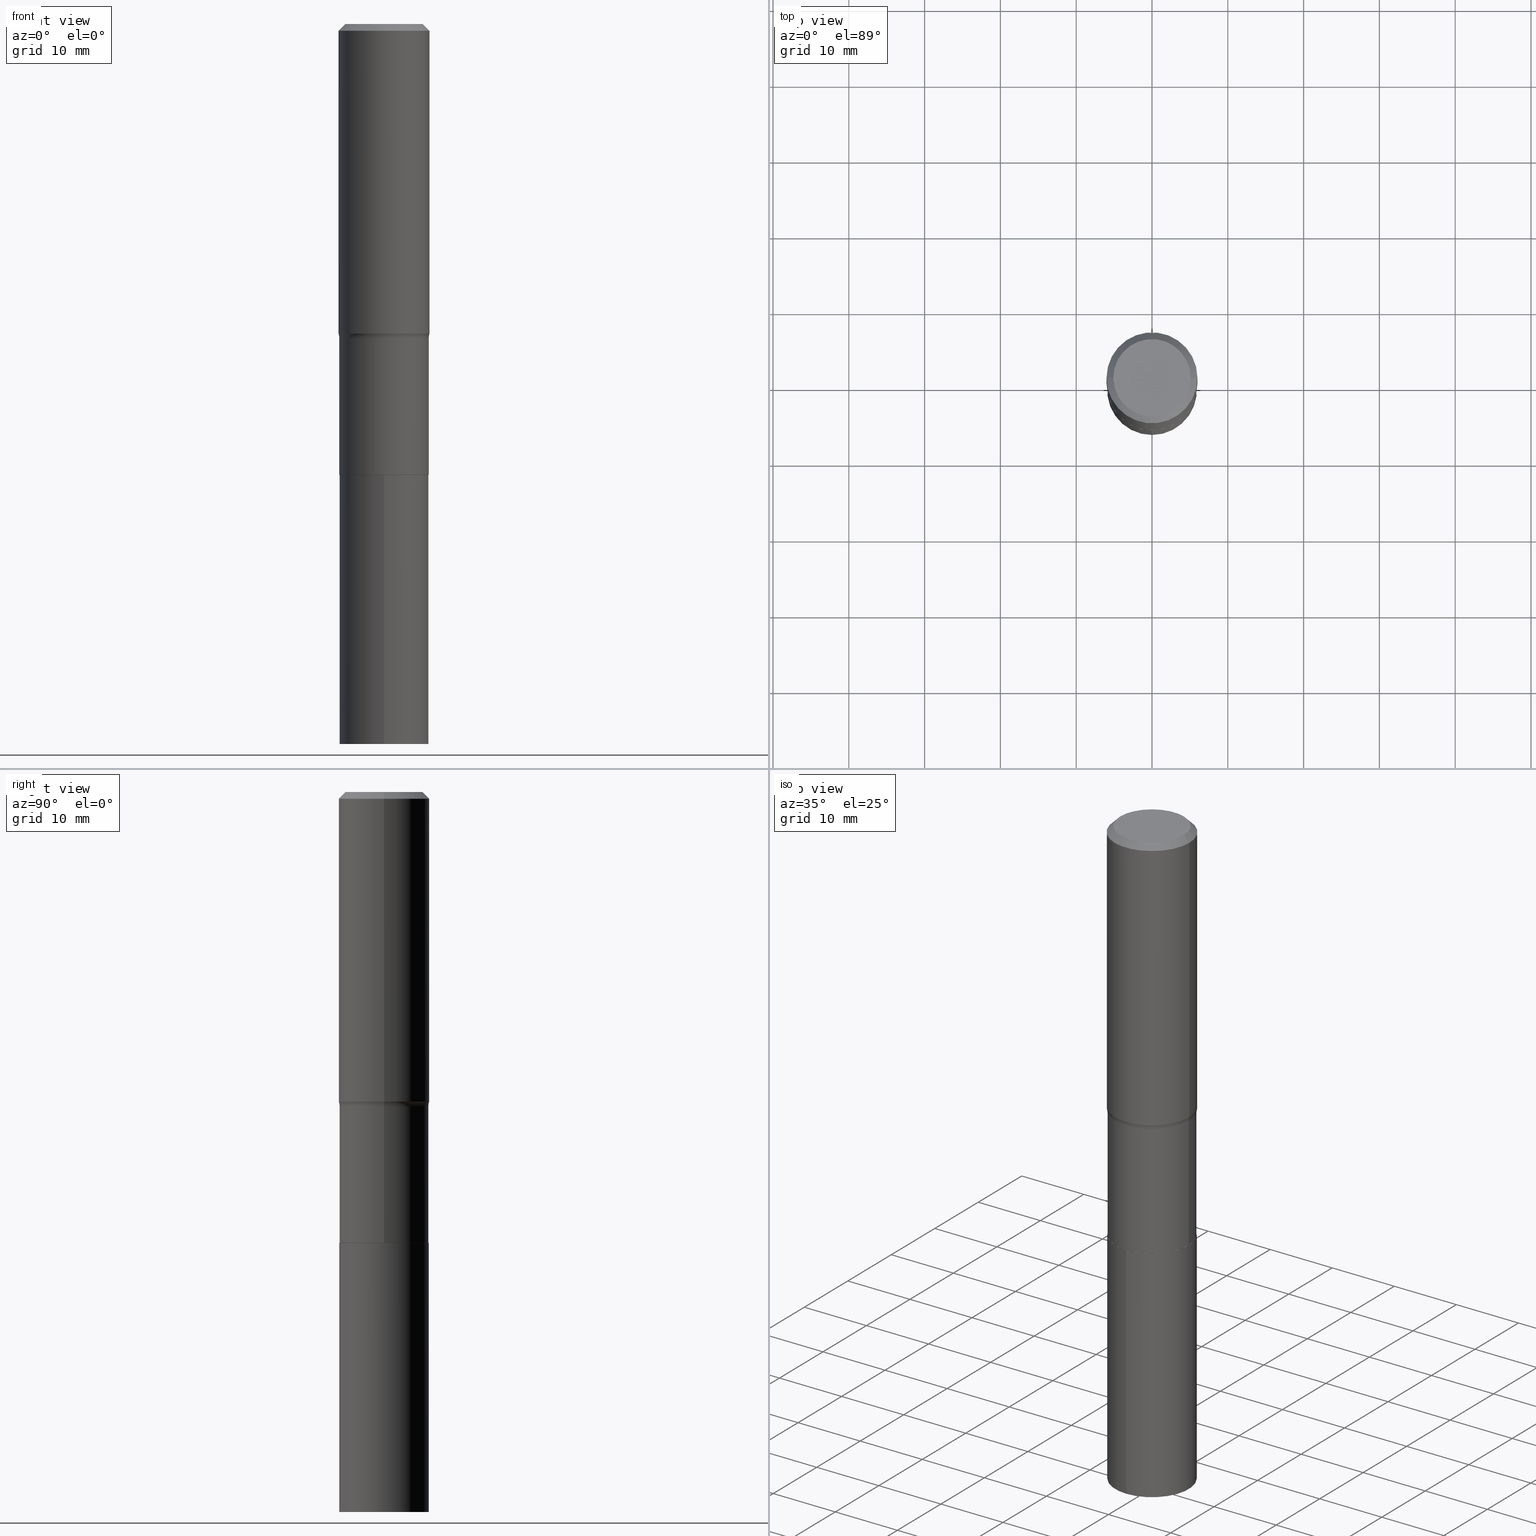
[diagram: canonical four-view strip — front | top / right | iso, engineering-drawing reading convention]
A machine part, canonical four-view strip (front | top / right | iso — engineering-drawing reading convention). The complete STEP part file that produces these views, byte-faithful:
ISO-10303-21;
HEADER;
FILE_DESCRIPTION (( 'STEP AP203' ),
    '1' );
FILE_NAME ('67795.STEP',
    '2024-04-19T16:31:55',
    ( '' ),
    ( '' ),
    'SwSTEP 2.0',
    'SolidWorks 2023',
    '' );
FILE_SCHEMA (( 'CONFIG_CONTROL_DESIGN' ));
ENDSEC;

DATA;
#1 = CALENDAR_DATE ( 2024, 19, 4 ) ;
#2 = VECTOR ( 'NONE', #244, 39.37007874015748143 ) ;
#3 = APPROVAL_PERSON_ORGANIZATION ( #293, #334, #437 ) ;
#4 = ADVANCED_FACE ( 'NONE', ( #218 ), #6, .F. ) ;
#5 = FACE_OUTER_BOUND ( 'NONE', #64, .T. ) ;
#6 = TOROIDAL_SURFACE ( 'NONE', #24, 0.3122999999999999110, 0.07999999999999998779 ) ;
#7 = AXIS2_PLACEMENT_3D ( 'NONE', #360, #136, #324 ) ;
#8 = DIRECTION ( 'NONE',  ( -2.445460196475928027E-29, 3.491493668436766401E-15, 1.000000000000000000 ) ) ;
#9 = CARTESIAN_POINT ( 'NONE',  ( 0.3122999999999999110, -7.880622529902856699E-15, -1.632500000000000062 ) ) ;
#10 = ORIENTED_EDGE ( 'NONE', *, *, #15, .T. ) ;
#11 = DIRECTION ( 'NONE',  ( -2.445468806185136597E-29, 3.491481338843145583E-15, 1.000000000000000000 ) ) ;
#12 = AXIS2_PLACEMENT_3D ( 'NONE', #29, #294, #181 ) ;
#13 =( NAMED_UNIT ( * ) PLANE_ANGLE_UNIT ( ) SI_UNIT ( $, .RADIAN. ) );
#14 = CARTESIAN_POINT ( 'NONE',  ( 5.727777037846827784E-29, -8.177747591838416328E-15, -2.342200000000000060 ) ) ;
#15 = EDGE_CURVE ( 'NONE', #239, #93, #32, .T. ) ;
#16 = ORIENTED_EDGE ( 'NONE', *, *, #302, .T. ) ;
#17 = AXIS2_PLACEMENT_3D ( 'NONE', #439, #11, #333 ) ;
#18 = CARTESIAN_POINT ( 'NONE',  ( 0.2322999999999998955, -7.321985515687955047E-15, -1.632500000000000062 ) ) ;
#19 = EDGE_LOOP ( 'NONE', ( #351, #256, #451, #123 ) ) ;
#20 = DIRECTION ( 'NONE',  ( 0.7071067811865450192, -7.319954787623246579E-15, -0.7071067811865500152 ) ) ;
#21 = ORIENTED_EDGE ( 'NONE', *, *, #446, .F. ) ;
#22 = CARTESIAN_POINT ( 'NONE',  ( 0.2362000000000001043, -1.649375784469496920E-15, 1.151752954443000508E-29 ) ) ;
#23 = VERTEX_POINT ( 'NONE', #140 ) ;
#24 = AXIS2_PLACEMENT_3D ( 'NONE', #321, #110, #259 ) ;
#25 = AXIS2_PLACEMENT_3D ( 'NONE', #124, #53, #414 ) ;
#26 = CARTESIAN_POINT ( 'NONE',  ( -0.2318000000000000060, -6.528060303172393642E-15, -2.342200000000000060 ) ) ;
#27 = VERTEX_POINT ( 'NONE', #426 ) ;
#28 = PERSON_AND_ORGANIZATION ( #226, #69 ) ;
#29 = CARTESIAN_POINT ( 'NONE',  ( 0.000000000000000000, 0.000000000000000000, 0.000000000000000000 ) ) ;
#30 = ADVANCED_FACE ( 'NONE', ( #31 ), #255, .T. ) ;
#31 = FACE_OUTER_BOUND ( 'NONE', #448, .T. ) ;
#32 = CIRCLE ( 'NONE', #298, 0.2007700000000000040 ) ;
#33 = CIRCLE ( 'NONE', #400, 0.2318000000000000060 ) ;
#34 = CC_DESIGN_SECURITY_CLASSIFICATION ( #149, ( #205 ) ) ;
#35 = ORIENTED_EDGE ( 'NONE', *, *, #150, .F. ) ;
#36 = ORIENTED_EDGE ( 'NONE', *, *, #112, .T. ) ;
#37 = DIRECTION ( 'NONE',  ( -6.982962677686265922E-15, -1.000000000000000000, 3.527999991817817286E-15 ) ) ;
#38 = ADVANCED_FACE ( 'NONE', ( #5 ), #358, .T. ) ;
#39 = EDGE_LOOP ( 'NONE', ( #405, #155, #175, #219 ) ) ;
#40 = CIRCLE ( 'NONE', #204, 0.2323000000000000065 ) ;
#41 = AXIS2_PLACEMENT_3D ( 'NONE', #407, #350, #199 ) ;
#42 = DATE_TIME_ROLE ( 'classification_date' ) ;
#43 = DIRECTION ( 'NONE',  ( -0.7071067811866199593, 7.493145998870616062E-15, 0.7071067811864750752 ) ) ;
#44 = CC_DESIGN_PERSON_AND_ORGANIZATION_ASSIGNMENT ( #227, #88, ( #149 ) ) ;
#45 = ORIENTED_EDGE ( 'NONE', *, *, #318, .F. ) ;
#46 = CARTESIAN_POINT ( 'NONE',  ( 8.664295980313998742E-31, -1.237031838352135065E-16, -0.03543000000000024602 ) ) ;
#47 = AXIS2_PLACEMENT_3D ( 'NONE', #85, #151, #115 ) ;
#48 = COORDINATED_UNIVERSAL_TIME_OFFSET ( 5, 0, .BEHIND. ) ;
#49 = EDGE_CURVE ( 'NONE', #384, #308, #435, .T. ) ;
#50 = CARTESIAN_POINT ( 'NONE',  ( -0.2361999999999999933, -1.190397463391202039E-15, -0.03543000000000024602 ) ) ;
#51 = CARTESIAN_POINT ( 'NONE',  ( 8.664295980313998742E-31, -1.237031838352135065E-16, -0.03543000000000024602 ) ) ;
#52 = DIRECTION ( 'NONE',  ( -2.445468806185136597E-29, 3.491481338843145583E-15, 1.000000000000000000 ) ) ;
#53 = DIRECTION ( 'NONE',  ( -2.445468806185136597E-29, 3.491481338843145583E-15, 1.000000000000000000 ) ) ;
#54 =( LENGTH_UNIT ( ) NAMED_UNIT ( * ) SI_UNIT ( $, .METRE. ) );
#55 = ORIENTED_EDGE ( 'NONE', *, *, #367, .T. ) ;
#56 = CIRCLE ( 'NONE', #372, 0.2323000000000000065 ) ;
#57 = VECTOR ( 'NONE', #281, 39.37007874015748143 ) ;
#58 = CARTESIAN_POINT ( 'NONE',  ( 0.2323000000000000065, -9.798144081195515105E-15, -2.341700000000000337 ) ) ;
#59 = DIRECTION ( 'NONE',  ( -2.445468806185136597E-29, 3.491481338843145583E-15, 1.000000000000000000 ) ) ;
#60 = EDGE_LOOP ( 'NONE', ( #462, #120, #347, #90 ) ) ;
#61 = DESIGN_CONTEXT ( 'detailed design', #169, 'design' ) ;
#62 = CARTESIAN_POINT ( 'NONE',  ( -1.622142230026462497E-15, -0.2323000000000081666, -2.342199999999999616 ) ) ;
#63 = EDGE_CURVE ( 'NONE', #168, #126, #276, .T. ) ;
#64 = EDGE_LOOP ( 'NONE', ( #412, #421, #258, #336 ) ) ;
#65 = DIRECTION ( 'NONE',  ( -0.7071067811865450192, 2.468850131082230634E-15, -0.7071067811865500152 ) ) ;
#66 = DIRECTION ( 'NONE',  ( -2.445468806185136877E-29, 3.491481338843145188E-15, 1.000000000000000000 ) ) ;
#67 = ORIENTED_EDGE ( 'NONE', *, *, #138, .F. ) ;
#68 = CIRCLE ( 'NONE', #161, 0.2322999999999998955 ) ;
#69 = ORGANIZATION ( 'UNSPECIFIED', 'UNSPECIFIED', '' ) ;
#70 = CARTESIAN_POINT ( 'NONE',  ( 3.931889135345447533E-29, -5.613695626677905258E-15, -1.607826329823067724 ) ) ;
#71 = ADVANCED_FACE ( 'NONE', ( #202 ), #317, .T. ) ;
#72 = PERSON_AND_ORGANIZATION ( #226, #69 ) ;
#73 = APPLICATION_CONTEXT ( 'configuration controlled 3d designs of mechanical parts and assemblies' ) ;
#74 = APPROVAL_DATE_TIME ( #391, #116 ) ;
#75 = AXIS2_PLACEMENT_3D ( 'NONE', #14, #417, #246 ) ;
#76 = DIRECTION ( 'NONE',  ( -2.445468806185136597E-29, 3.491481338843145583E-15, 1.000000000000000000 ) ) ;
#77 = MECHANICAL_CONTEXT ( 'NONE', #73, 'mechanical' ) ;
#78 = EDGE_CURVE ( 'NONE', #206, #387, #458, .T. ) ;
#79 = APPROVAL_DATE_TIME ( #84, #171 ) ;
#80 = DIRECTION ( 'NONE',  ( -2.445460196475928027E-29, 3.491493668436766401E-15, 1.000000000000000000 ) ) ;
#81 = PERSON_AND_ORGANIZATION_ROLE ( 'creator' ) ;
#82 = PERSON_AND_ORGANIZATION_ROLE ( 'design_supplier' ) ;
#83 = VECTOR ( 'NONE', #174, 39.37007874015748143 ) ;
#84 = DATE_AND_TIME ( #152, #119 ) ;
#85 = CARTESIAN_POINT ( 'NONE',  ( 3.992227826097236189E-29, -5.699843285661435555E-15, -1.632500000000000062 ) ) ;
#86 = CIRCLE ( 'NONE', #338, 0.2361999999999999933 ) ;
#87 = EDGE_CURVE ( 'NONE', #455, #260, #141, .T. ) ;
#88 = PERSON_AND_ORGANIZATION_ROLE ( 'classification_officer' ) ;
#89 = DATE_AND_TIME ( #404, #442 ) ;
#90 = ORIENTED_EDGE ( 'NONE', *, *, #386, .F. ) ;
#91 = LINE ( 'NONE', #225, #113 ) ;
#92 = CIRCLE ( 'NONE', #25, 0.2318000000000000060 ) ;
#93 = VERTEX_POINT ( 'NONE', #237 ) ;
#94 = DIRECTION ( 'NONE',  ( -2.438088387897960049E-29, 3.491481338843145188E-15, 1.000000000000000000 ) ) ;
#95 = CARTESIAN_POINT ( 'NONE',  ( 9.146530392520179106E-29, -1.305885574031301935E-14, -3.740200000000001079 ) ) ;
#96 =( NAMED_UNIT ( * ) SI_UNIT ( $, .STERADIAN. ) SOLID_ANGLE_UNIT ( ) );
#97 = ORIENTED_EDGE ( 'NONE', *, *, #251, .F. ) ;
#98 = AXIS2_PLACEMENT_3D ( 'NONE', #466, #139, #286 ) ;
#99 = CIRCLE ( 'NONE', #401, 0.07999999999999996003 ) ;
#100 = ADVANCED_FACE ( 'NONE', ( #165 ), #129, .T. ) ;
#101 = DIRECTION ( 'NONE',  ( -2.445468806185136597E-29, 3.491481338843145583E-15, 1.000000000000000000 ) ) ;
#102 = EDGE_LOOP ( 'NONE', ( #35, #223 ) ) ;
#103 = CARTESIAN_POINT ( 'NONE',  ( 0.2007700000000000040, -1.560767496960719869E-15, 4.096137381458473721E-18 ) ) ;
#104 = DIRECTION ( 'NONE',  ( 1.000000000000000000, -6.982962677686266711E-15, 4.876176775795935793E-29 ) ) ;
#105 = ORIENTED_EDGE ( 'NONE', *, *, #342, .F. ) ;
#106 = FACE_OUTER_BOUND ( 'NONE', #19, .T. ) ;
#107 = EDGE_CURVE ( 'NONE', #172, #222, #92, .T. ) ;
#108 = ORIENTED_EDGE ( 'NONE', *, *, #378, .T. ) ;
#109 = DIRECTION ( 'NONE',  ( 0.000000000000000000, 0.000000000000000000, 1.000000000000000000 ) ) ;
#110 = DIRECTION ( 'NONE',  ( -2.445468806185136597E-29, 3.491481338843145583E-15, 1.000000000000000000 ) ) ;
#111 = ORIENTED_EDGE ( 'NONE', *, *, #465, .T. ) ;
#112 = EDGE_CURVE ( 'NONE', #222, #172, #33, .T. ) ;
#113 = VECTOR ( 'NONE', #8, 39.37007874015748143 ) ;
#114 = AXIS2_PLACEMENT_3D ( 'NONE', #159, #450, #208 ) ;
#115 = DIRECTION ( 'NONE',  ( 1.000000000000000000, -6.982962677686265133E-15, 0.000000000000000000 ) ) ;
#116 = APPROVAL ( #327, 'UNSPECIFIED' ) ;
#117 = CLOSED_SHELL ( 'NONE', ( #264, #269, #30, #425 ) ) ;
#118 = CONICAL_SURFACE ( 'NONE', #291, 0.2318000000000000060, 0.7853981633975507526 ) ;
#119 = LOCAL_TIME ( 12, 31, 55.00000000000000000, #192 ) ;
#120 = ORIENTED_EDGE ( 'NONE', *, *, #138, .T. ) ;
#121 = DATE_AND_TIME ( #337, #459 ) ;
#122 = LINE ( 'NONE', #303, #292 ) ;
#123 = ORIENTED_EDGE ( 'NONE', *, *, #302, .F. ) ;
#124 = CARTESIAN_POINT ( 'NONE',  ( 5.727777037846827784E-29, -8.177747591838416328E-15, -2.342200000000000060 ) ) ;
#125 = DIRECTION ( 'NONE',  ( 0.7071067811866199593, -2.468850131083015945E-15, 0.7071067811864750752 ) ) ;
#126 = VERTEX_POINT ( 'NONE', #18 ) ;
#127 = CC_DESIGN_PERSON_AND_ORGANIZATION_ASSIGNMENT ( #399, #82, ( #205 ) ) ;
#128 = CARTESIAN_POINT ( 'NONE',  ( -0.2361999999999999933, 1.525672600634282550E-15, -0.03543000000000024602 ) ) ;
#129 = CYLINDRICAL_SURFACE ( 'NONE', #379, 0.2322999999999999510 ) ;
#130 = CARTESIAN_POINT ( 'NONE',  ( -0.2362000000000002153, -3.935393684812547286E-15, -1.607826329823067724 ) ) ;
#131 = ORIENTED_EDGE ( 'NONE', *, *, #189, .T. ) ;
#132 = AXIS2_PLACEMENT_3D ( 'NONE', #147, #326, #182 ) ;
#133 = PRODUCT_RELATED_PRODUCT_CATEGORY ( 'detail', '', ( #230 ) ) ;
#134 = PLANE ( 'NONE',  #345 ) ;
#135 = DIRECTION ( 'NONE',  ( 1.000000000000000000, -6.982962677686266711E-15, 4.876176775795935232E-29 ) ) ;
#136 = DIRECTION ( 'NONE',  ( 2.438088387897960049E-29, -3.491481338843145188E-15, -1.000000000000000000 ) ) ;
#137 = EDGE_LOOP ( 'NONE', ( #305, #271, #111, #21 ) ) ;
#138 = EDGE_CURVE ( 'NONE', #387, #308, #190, .T. ) ;
#139 = DIRECTION ( 'NONE',  ( -2.445468806185136597E-29, 3.491481338843145583E-15, 1.000000000000000000 ) ) ;
#140 = CARTESIAN_POINT ( 'NONE',  ( 1.650590775170804286E-15, 0.2322999999999918463, -2.342200000000000948 ) ) ;
#141 = CIRCLE ( 'NONE', #148, 0.2361999999999999933 ) ;
#142 = ORIENTED_EDGE ( 'NONE', *, *, #15, .F. ) ;
#143 = DATE_TIME_ROLE ( 'creation_date' ) ;
#144 = EDGE_LOOP ( 'NONE', ( #249, #394, #178, #283 ) ) ;
#145 = CARTESIAN_POINT ( 'NONE',  ( 5.727777037846827784E-29, -8.177747591838416328E-15, -2.342200000000000060 ) ) ;
#146 = CC_DESIGN_DATE_AND_TIME_ASSIGNMENT ( #89, #42, ( #149 ) ) ;
#147 = CARTESIAN_POINT ( 'NONE',  ( 8.664295980313998742E-31, -1.237031838352135065E-16, -0.03543000000000024602 ) ) ;
#148 = AXIS2_PLACEMENT_3D ( 'NONE', #357, #160, #254 ) ;
#149 = SECURITY_CLASSIFICATION ( '', '', #402 ) ;
#150 = EDGE_CURVE ( 'NONE', #275, #27, #232, .T. ) ;
#151 = DIRECTION ( 'NONE',  ( -2.445468806185136597E-29, 3.491481338843145583E-15, 1.000000000000000000 ) ) ;
#152 = CALENDAR_DATE ( 2024, 19, 4 ) ;
#153 = DIRECTION ( 'NONE',  ( -6.982962677686266711E-15, -1.000000000000000000, 3.491481338843145583E-15 ) ) ;
#154 = APPROVAL_DATE_TIME ( #121, #334 ) ;
#155 = ORIENTED_EDGE ( 'NONE', *, *, #186, .F. ) ;
#156 = DIRECTION ( 'NONE',  ( -2.445460196475928027E-29, 3.491493668436766401E-15, 1.000000000000000000 ) ) ;
#157 = APPLICATION_PROTOCOL_DEFINITION ( 'international standard', 'config_control_design', 1994, #73 ) ;
#158 = ADVANCED_FACE ( 'NONE', ( #213 ), #118, .T. ) ;
#159 = CARTESIAN_POINT ( 'NONE',  ( 0.000000000000000000, 0.000000000000000000, 0.000000000000000000 ) ) ;
#160 = DIRECTION ( 'NONE',  ( -2.445468806185136597E-29, 3.491481338843145583E-15, 1.000000000000000000 ) ) ;
#161 = AXIS2_PLACEMENT_3D ( 'NONE', #170, #310, #247 ) ;
#162 = AXIS2_PLACEMENT_3D ( 'NONE', #468, #187, #325 ) ;
#163 = LINE ( 'NONE', #415, #2 ) ;
#164 = ORIENTED_EDGE ( 'NONE', *, *, #112, .F. ) ;
#165 = FACE_OUTER_BOUND ( 'NONE', #144, .T. ) ;
#166 = CC_DESIGN_PERSON_AND_ORGANIZATION_ASSIGNMENT ( #263, #81, ( #205 ) ) ;
#167 = PLANE ( 'NONE',  #368 ) ;
#168 = VERTEX_POINT ( 'NONE', #58 ) ;
#169 = APPLICATION_CONTEXT ( 'configuration controlled 3d designs of mechanical parts and assemblies' ) ;
#170 = CARTESIAN_POINT ( 'NONE',  ( 3.992227826097236189E-29, -5.699843285661435555E-15, -1.632500000000000062 ) ) ;
#171 = APPROVAL ( #370, 'UNSPECIFIED' ) ;
#172 = VERTEX_POINT ( 'NONE', #26 ) ;
#173 = DIRECTION ( 'NONE',  ( -2.445460196475927747E-29, 3.491493668436766401E-15, 1.000000000000000000 ) ) ;
#174 = DIRECTION ( 'NONE',  ( -2.445468806185136877E-29, 3.491481338843145188E-15, 1.000000000000000000 ) ) ;
#175 = ORIENTED_EDGE ( 'NONE', *, *, #251, .T. ) ;
#176 = CONICAL_SURFACE ( 'NONE', #267, 0.2361999999999999933, 0.7853981633974447263 ) ;
#177 = CARTESIAN_POINT ( 'NONE',  ( 0.2322999999999999510, -1.622142230026519492E-15, 1.132735865017395539E-29 ) ) ;
#178 = ORIENTED_EDGE ( 'NONE', *, *, #63, .T. ) ;
#179 = FACE_OUTER_BOUND ( 'NONE', #381, .T. ) ;
#180 = APPLICATION_PROTOCOL_DEFINITION ( 'international standard', 'config_control_design', 1994, #169 ) ;
#181 = DIRECTION ( 'NONE',  ( 1.000000000000000000, -6.982962677686266711E-15, 4.876176775795935232E-29 ) ) ;
#182 = DIRECTION ( 'NONE',  ( -1.000000000000000000, 6.982962677686266711E-15, 0.000000000000000000 ) ) ;
#183 = CIRCLE ( 'NONE', #98, 0.2007700000000000040 ) ;
#184 = PERSON_AND_ORGANIZATION_ROLE ( 'creator' ) ;
#185 = CC_DESIGN_APPROVAL ( #171, ( #149 ) ) ;
#186 = EDGE_CURVE ( 'NONE', #93, #239, #183, .T. ) ;
#187 = DIRECTION ( 'NONE',  ( -2.445460196475928027E-29, 3.491493668436766401E-15, 1.000000000000000000 ) ) ;
#188 = COORDINATED_UNIVERSAL_TIME_OFFSET ( 5, 0, .BEHIND. ) ;
#189 = EDGE_CURVE ( 'NONE', #239, #455, #207, .T. ) ;
#190 = CIRCLE ( 'NONE', #408, 0.07999999999999996003 ) ;
#191 = CARTESIAN_POINT ( 'NONE',  ( 5.727777037846827784E-29, -8.177747591838416328E-15, -2.342200000000000060 ) ) ;
#192 = COORDINATED_UNIVERSAL_TIME_OFFSET ( 5, 0, .BEHIND. ) ;
#193 = DIRECTION ( 'NONE',  ( -2.445468806185136597E-29, 3.491481338843145583E-15, 1.000000000000000000 ) ) ;
#194 = ORIENTED_EDGE ( 'NONE', *, *, #386, .T. ) ;
#195 = DIRECTION ( 'NONE',  ( 1.000000000000000000, -6.982962677686262766E-15, 0.000000000000000000 ) ) ;
#196 = EDGE_CURVE ( 'NONE', #308, #126, #68, .T. ) ;
#197 = PERSON_AND_ORGANIZATION ( #226, #69 ) ;
#198 = CARTESIAN_POINT ( 'NONE',  ( -3.139212806744522450E-29, -3.065273926273713566E-14, -3.740200000000000635 ) ) ;
#199 = DIRECTION ( 'NONE',  ( 1.000000000000000000, -6.982962677686265922E-15, 0.000000000000000000 ) ) ;
#200 = PRODUCT_DEFINITION ( 'UNKNOWN', '', #205, #61 ) ;
#201 = ADVANCED_BREP_SHAPE_REPRESENTATION ( '67795', ( #282, #440, #431 ), #301 ) ;
#202 = FACE_OUTER_BOUND ( 'NONE', #315, .T. ) ;
#203 =( CONVERSION_BASED_UNIT ( 'INCH', #277 ) LENGTH_UNIT ( ) NAMED_UNIT ( #422 ) );
#204 = AXIS2_PLACEMENT_3D ( 'NONE', #145, #156, #339 ) ;
#205 = PRODUCT_DEFINITION_FORMATION_WITH_SPECIFIED_SOURCE ( 'ANY', '', #230, .NOT_KNOWN. ) ;
#206 = VERTEX_POINT ( 'NONE', #383 ) ;
#207 = LINE ( 'NONE', #348, #429 ) ;
#208 = DIRECTION ( 'NONE',  ( 1.000000000000000000, -6.982962677686266711E-15, 4.876176775795935793E-29 ) ) ;
#209 = VERTEX_POINT ( 'NONE', #62 ) ;
#210 = LINE ( 'NONE', #22, #83 ) ;
#211 = EDGE_LOOP ( 'NONE', ( #36, #377, #424, #299 ) ) ;
#212 = CARTESIAN_POINT ( 'NONE',  ( 5.727777037846827784E-29, -8.177747591838416328E-15, -2.342200000000000060 ) ) ;
#213 = FACE_OUTER_BOUND ( 'NONE', #137, .T. ) ;
#214 = ORIENTED_EDGE ( 'NONE', *, *, #78, .F. ) ;
#215 = EDGE_CURVE ( 'NONE', #206, #455, #210, .T. ) ;
#216 = CIRCLE ( 'NONE', #41, 0.2323000000000000065 ) ;
#217 = PERSON_AND_ORGANIZATION ( #226, #69 ) ;
#218 = FACE_OUTER_BOUND ( 'NONE', #364, .T. ) ;
#219 = ORIENTED_EDGE ( 'NONE', *, *, #438, .T. ) ;
#220 = EDGE_CURVE ( 'NONE', #27, #275, #436, .T. ) ;
#221 = AXIS2_PLACEMENT_3D ( 'NONE', #95, #419, #449 ) ;
#222 = VERTEX_POINT ( 'NONE', #403 ) ;
#223 = ORIENTED_EDGE ( 'NONE', *, *, #220, .F. ) ;
#224 = EDGE_CURVE ( 'NONE', #168, #384, #366, .T. ) ;
#225 = CARTESIAN_POINT ( 'NONE',  ( 1.650590775170769773E-15, 0.2322999999999918463, -2.342200000000000948 ) ) ;
#226 = PERSON ( 'UNSPECIFIED', 'UNSPECIFIED', 'UNSPECIFIED', ('UNSPECIFIED'), ('UNSPECIFIED'), ('UNSPECIFIED') ) ;
#227 = PERSON_AND_ORGANIZATION ( #226, #69 ) ;
#228 = DIRECTION ( 'NONE',  ( -6.982962677686265922E-15, -1.000000000000000000, 2.351999994545211393E-15 ) ) ;
#229 = CARTESIAN_POINT ( 'NONE',  ( -0.2318000000000000060, -6.530709530346504843E-15, -2.342200000000000060 ) ) ;
#230 = PRODUCT ( '67795', '67795', '', ( #77 ) ) ;
#231 = ORIENTED_EDGE ( 'NONE', *, *, #87, .T. ) ;
#232 = CIRCLE ( 'NONE', #221, 0.2323000000000000065 ) ;
#233 = CARTESIAN_POINT ( 'NONE',  ( 0.000000000000000000, 0.000000000000000000, 0.000000000000000000 ) ) ;
#234 = DIRECTION ( 'NONE',  ( 6.982962677686265922E-15, 1.000000000000000000, -3.491493668436766401E-15 ) ) ;
#235 = CARTESIAN_POINT ( 'NONE',  ( 3.992227826097236189E-29, -5.699843285661435555E-15, -1.632500000000000062 ) ) ;
#236 = ADVANCED_FACE ( 'NONE', ( #385 ), #134, .F. ) ;
#237 = CARTESIAN_POINT ( 'NONE',  ( -0.2007700000000000040, 1.463821008716676943E-15, 4.096137381438094301E-18 ) ) ;
#238 = CARTESIAN_POINT ( 'NONE',  ( 5.727777037846827784E-29, -8.177747591838416328E-15, -2.342200000000000060 ) ) ;
#239 = VERTEX_POINT ( 'NONE', #103 ) ;
#240 = CARTESIAN_POINT ( 'NONE',  ( 5.727777037846827784E-29, -8.177747591838416328E-15, -2.342200000000000060 ) ) ;
#241 = CLOSED_SHELL ( 'NONE', ( #349, #289, #406, #297, #38, #100, #4, #71, #329, #312, #236, #158 ) ) ;
#242 = TOROIDAL_SURFACE ( 'NONE', #365, 0.3122999999999999110, 0.07999999999999998779 ) ;
#243 = LOCAL_TIME ( 12, 31, 55.00000000000000000, #320 ) ;
#244 = DIRECTION ( 'NONE',  ( -2.445460196475928027E-29, 3.491493668436766401E-15, 1.000000000000000000 ) ) ;
#245 = ORIENTED_EDGE ( 'NONE', *, *, #215, .F. ) ;
#246 = DIRECTION ( 'NONE',  ( -6.982962677686265922E-15, -1.000000000000000000, 3.527999991817817286E-15 ) ) ;
#247 = DIRECTION ( 'NONE',  ( 1.000000000000000000, -6.982962677686265133E-15, 0.000000000000000000 ) ) ;
#248 = ORIENTED_EDGE ( 'NONE', *, *, #296, .T. ) ;
#249 = ORIENTED_EDGE ( 'NONE', *, *, #49, .F. ) ;
#250 = CARTESIAN_POINT ( 'NONE',  ( 5.727777037846827784E-29, -8.177747591838416328E-15, -2.342200000000000060 ) ) ;
#251 = EDGE_CURVE ( 'NONE', #93, #260, #316, .T. ) ;
#252 = ORIENTED_EDGE ( 'NONE', *, *, #434, .T. ) ;
#253 = DIRECTION ( 'NONE',  ( -6.982962677686265922E-15, -1.000000000000000000, 3.491493668436766401E-15 ) ) ;
#254 = DIRECTION ( 'NONE',  ( 1.000000000000000000, -6.982962677686266711E-15, 0.000000000000000000 ) ) ;
#255 = CYLINDRICAL_SURFACE ( 'NONE', #162, 0.2323000000000000065 ) ;
#256 = ORIENTED_EDGE ( 'NONE', *, *, #318, .T. ) ;
#257 = CALENDAR_DATE ( 2024, 19, 4 ) ;
#258 = ORIENTED_EDGE ( 'NONE', *, *, #367, .F. ) ;
#259 = DIRECTION ( 'NONE',  ( 1.000000000000000000, -6.982962677686265922E-15, 4.883557194083112901E-29 ) ) ;
#260 = VERTEX_POINT ( 'NONE', #50 ) ;
#261 = APPROVAL_STATUS ( 'not_yet_approved' ) ;
#262 = AXIS2_PLACEMENT_3D ( 'NONE', #309, #273, #341 ) ;
#263 = PERSON_AND_ORGANIZATION ( #226, #69 ) ;
#264 = ADVANCED_FACE ( 'NONE', ( #106 ), #456, .T. ) ;
#265 = LINE ( 'NONE', #229, #274 ) ;
#266 = ORIENTED_EDGE ( 'NONE', *, *, #215, .T. ) ;
#267 = AXIS2_PLACEMENT_3D ( 'NONE', #46, #328, #272 ) ;
#268 = DIRECTION ( 'NONE',  ( 1.000000000000000000, -6.982962677686266711E-15, 0.000000000000000000 ) ) ;
#269 = ADVANCED_FACE ( 'NONE', ( #382 ), #463, .F. ) ;
#270 = COORDINATED_UNIVERSAL_TIME_OFFSET ( 5, 0, .BEHIND. ) ;
#271 = ORIENTED_EDGE ( 'NONE', *, *, #107, .T. ) ;
#272 = DIRECTION ( 'NONE',  ( -1.000000000000000000, 6.982962677686266711E-15, 0.000000000000000000 ) ) ;
#273 = DIRECTION ( 'NONE',  ( -2.445468806185136597E-29, 3.491481338843145583E-15, 1.000000000000000000 ) ) ;
#274 = VECTOR ( 'NONE', #43, 39.37007874015748143 ) ;
#275 = VERTEX_POINT ( 'NONE', #362 ) ;
#276 = LINE ( 'NONE', #177, #300 ) ;
#277 = LENGTH_MEASURE_WITH_UNIT ( LENGTH_MEASURE( 0.02539999999999999897 ), #54 );
#278 = DIRECTION ( 'NONE',  ( 1.000000000000000000, -6.982962677686265922E-15, 4.883557194083112901E-29 ) ) ;
#279 = EDGE_LOOP ( 'NONE', ( #290, #10 ) ) ;
#280 = DIRECTION ( 'NONE',  ( 7.105427357601001859E-15, 1.000000000000000000, -3.491481338843145583E-15 ) ) ;
#281 = DIRECTION ( 'NONE',  ( -2.445468806185136877E-29, 3.491481338843145188E-15, 1.000000000000000000 ) ) ;
#282 = MANIFOLD_SOLID_BREP ( 'Body-Move/Copy2[1]', #117 ) ;
#283 = ORIENTED_EDGE ( 'NONE', *, *, #196, .F. ) ;
#284 = DIRECTION ( 'NONE',  ( -2.445468806185136597E-29, 3.491481338843145583E-15, 1.000000000000000000 ) ) ;
#285 = EDGE_LOOP ( 'NONE', ( #363, #252, #288, #245 ) ) ;
#286 = DIRECTION ( 'NONE',  ( 1.000000000000000000, -6.982962677686266711E-15, 4.876140833081945105E-29 ) ) ;
#287 = FACE_OUTER_BOUND ( 'NONE', #279, .T. ) ;
#288 = ORIENTED_EDGE ( 'NONE', *, *, #87, .F. ) ;
#289 = ADVANCED_FACE ( 'NONE', ( #179 ), #418, .T. ) ;
#290 = ORIENTED_EDGE ( 'NONE', *, *, #186, .T. ) ;
#291 = AXIS2_PLACEMENT_3D ( 'NONE', #240, #284, #380 ) ;
#292 = VECTOR ( 'NONE', #125, 39.37007874015748143 ) ;
#293 = PERSON_AND_ORGANIZATION ( #226, #69 ) ;
#294 = DIRECTION ( 'NONE',  ( -2.445468806185136597E-29, 3.491481338843145583E-15, 1.000000000000000000 ) ) ;
#295 = VECTOR ( 'NONE', #432, 39.37007874015748143 ) ;
#296 = EDGE_CURVE ( 'NONE', #209, #23, #40, .T. ) ;
#297 = ADVANCED_FACE ( 'NONE', ( #374 ), #242, .F. ) ;
#298 = AXIS2_PLACEMENT_3D ( 'NONE', #467, #76, #392 ) ;
#299 = ORIENTED_EDGE ( 'NONE', *, *, #465, .F. ) ;
#300 = VECTOR ( 'NONE', #66, 39.37007874015748143 ) ;
#301 =( GEOMETRIC_REPRESENTATION_CONTEXT ( 3 ) GLOBAL_UNCERTAINTY_ASSIGNED_CONTEXT ( ( #457 ) ) GLOBAL_UNIT_ASSIGNED_CONTEXT ( ( #203, #13, #96 ) ) REPRESENTATION_CONTEXT ( 'NONE', 'WORKASPACE' ) );
#302 = EDGE_CURVE ( 'NONE', #275, #209, #163, .T. ) ;
#303 = CARTESIAN_POINT ( 'NONE',  ( 0.2318000000000000060, -9.796398340526092813E-15, -2.342200000000000060 ) ) ;
#304 = AXIS2_PLACEMENT_3D ( 'NONE', #70, #354, #411 ) ;
#305 = ORIENTED_EDGE ( 'NONE', *, *, #373, .F. ) ;
#306 = CARTESIAN_POINT ( 'NONE',  ( 0.000000000000000000, 0.000000000000000000, 0.000000000000000000 ) ) ;
#307 = DIRECTION ( 'NONE',  ( 1.000000000000000000, -6.982962677686266711E-15, 0.000000000000000000 ) ) ;
#308 = VERTEX_POINT ( 'NONE', #461 ) ;
#309 = CARTESIAN_POINT ( 'NONE',  ( 5.726554303443734982E-29, -8.176001851168995614E-15, -2.341700000000000337 ) ) ;
#310 = DIRECTION ( 'NONE',  ( -2.445468806185136597E-29, 3.491481338843145583E-15, 1.000000000000000000 ) ) ;
#311 = ORIENTED_EDGE ( 'NONE', *, *, #342, .T. ) ;
#312 = ADVANCED_FACE ( 'NONE', ( #287 ), #433, .F. ) ;
#313 = CARTESIAN_POINT ( 'NONE',  ( 9.146530392520179106E-29, -1.305885574031301935E-14, -3.740200000000001079 ) ) ;
#314 = CC_DESIGN_APPROVAL ( #334, ( #205 ) ) ;
#315 = EDGE_LOOP ( 'NONE', ( #371, #108, #266, #344 ) ) ;
#316 = LINE ( 'NONE', #128, #331 ) ;
#317 = CYLINDRICAL_SURFACE ( 'NONE', #395, 0.2362000000000001043 ) ;
#318 = EDGE_CURVE ( 'NONE', #27, #23, #91, .T. ) ;
#319 = CARTESIAN_POINT ( 'NONE',  ( -0.2322999999999999510, 1.650590775170712383E-15, -1.142668621466214426E-29 ) ) ;
#320 = COORDINATED_UNIVERSAL_TIME_OFFSET ( 5, 0, .BEHIND. ) ;
#321 = CARTESIAN_POINT ( 'NONE',  ( 3.992227826097236189E-29, -5.699843285661435555E-15, -1.632500000000000062 ) ) ;
#322 = CC_DESIGN_APPROVAL ( #116, ( #200 ) ) ;
#323 = DATE_AND_TIME ( #1, #243 ) ;
#324 = DIRECTION ( 'NONE',  ( -1.000000000000000000, 6.982962677686265922E-15, -4.876176775795935793E-29 ) ) ;
#325 = DIRECTION ( 'NONE',  ( -6.982962677686265922E-15, -1.000000000000000000, 3.527999991817817286E-15 ) ) ;
#326 = DIRECTION ( 'NONE',  ( 2.445468806185136597E-29, -3.491481338843145583E-15, -1.000000000000000000 ) ) ;
#327 = APPROVAL_STATUS ( 'not_yet_approved' ) ;
#328 = DIRECTION ( 'NONE',  ( 2.445468806185136597E-29, -3.491481338843145583E-15, -1.000000000000000000 ) ) ;
#329 = ADVANCED_FACE ( 'NONE', ( #397 ), #176, .T. ) ;
#330 = FACE_OUTER_BOUND ( 'NONE', #211, .T. ) ;
#331 = VECTOR ( 'NONE', #65, 39.37007874015748143 ) ;
#332 = APPROVAL_PERSON_ORGANIZATION ( #197, #171, #340 ) ;
#333 = DIRECTION ( 'NONE',  ( 1.000000000000000000, -6.982962677686264344E-15, 0.000000000000000000 ) ) ;
#334 = APPROVAL ( #261, 'UNSPECIFIED' ) ;
#335 = CARTESIAN_POINT ( 'NONE',  ( -0.2323000000000000065, -5.287331793244503201E-15, -2.341700000000000337 ) ) ;
#336 = ORIENTED_EDGE ( 'NONE', *, *, #63, .F. ) ;
#337 = CALENDAR_DATE ( 2024, 19, 4 ) ;
#338 = AXIS2_PLACEMENT_3D ( 'NONE', #51, #59, #307 ) ;
#339 = DIRECTION ( 'NONE',  ( -6.982962677686265922E-15, -1.000000000000000000, 3.527999991817817286E-15 ) ) ;
#340 = APPROVAL_ROLE ( '' ) ;
#341 = DIRECTION ( 'NONE',  ( 1.000000000000000000, -6.982962677686265922E-15, 0.000000000000000000 ) ) ;
#342 = EDGE_CURVE ( 'NONE', #23, #209, #56, .T. ) ;
#343 = CARTESIAN_POINT ( 'NONE',  ( 0.2361999999999999933, -1.773078968304709711E-15, -0.03543000000000024602 ) ) ;
#344 = ORIENTED_EDGE ( 'NONE', *, *, #438, .F. ) ;
#345 = AXIS2_PLACEMENT_3D ( 'NONE', #212, #94, #452 ) ;
#346 = DIRECTION ( 'NONE',  ( 1.000000000000000000, -6.982962677686264344E-15, 0.000000000000000000 ) ) ;
#347 = ORIENTED_EDGE ( 'NONE', *, *, #196, .T. ) ;
#348 = CARTESIAN_POINT ( 'NONE',  ( 0.2361999999999999933, -1.744152810908849251E-15, -0.03543000000000024602 ) ) ;
#349 = ADVANCED_FACE ( 'NONE', ( #330 ), #445, .T. ) ;
#350 = DIRECTION ( 'NONE',  ( -2.445468806185136597E-29, 3.491481338843145583E-15, 1.000000000000000000 ) ) ;
#351 = ORIENTED_EDGE ( 'NONE', *, *, #150, .T. ) ;
#352 = CARTESIAN_POINT ( 'NONE',  ( -0.3122999999999999110, -3.480818321882643701E-15, -1.632500000000000062 ) ) ;
#353 = EDGE_LOOP ( 'NONE', ( #164, #464 ) ) ;
#354 = DIRECTION ( 'NONE',  ( -2.445468806185136597E-29, 3.491481338843145583E-15, 1.000000000000000000 ) ) ;
#355 = CC_DESIGN_PERSON_AND_ORGANIZATION_ASSIGNMENT ( #72, #184, ( #200 ) ) ;
#356 = PERSON_AND_ORGANIZATION_ROLE ( 'design_owner' ) ;
#357 = CARTESIAN_POINT ( 'NONE',  ( 8.664295980313998742E-31, -1.237031838352135065E-16, -0.03543000000000024602 ) ) ;
#358 = CYLINDRICAL_SURFACE ( 'NONE', #12, 0.2322999999999999510 ) ;
#359 = DIRECTION ( 'NONE',  ( 1.000000000000000000, 0.000000000000000000, 0.000000000000000000 ) ) ;
#360 = CARTESIAN_POINT ( 'NONE',  ( -5.008488096090115757E-47, 7.150793614331959538E-33, 2.048068690724057264E-18 ) ) ;
#361 = AXIS2_PLACEMENT_3D ( 'NONE', #313, #460, #228 ) ;
#362 = CARTESIAN_POINT ( 'NONE',  ( -1.622142230026428181E-15, -0.2323000000000130516, -3.740200000000000635 ) ) ;
#363 = ORIENTED_EDGE ( 'NONE', *, *, #78, .T. ) ;
#364 = EDGE_LOOP ( 'NONE', ( #67, #214, #194, #55 ) ) ;
#365 = AXIS2_PLACEMENT_3D ( 'NONE', #235, #52, #278 ) ;
#366 = CIRCLE ( 'NONE', #262, 0.2323000000000000065 ) ;
#367 = EDGE_CURVE ( 'NONE', #126, #308, #389, .T. ) ;
#368 = AXIS2_PLACEMENT_3D ( 'NONE', #238, #410, #234 ) ;
#369 = CARTESIAN_POINT ( 'NONE',  ( 3.931889135345447533E-29, -5.613695626677905258E-15, -1.607826329823067724 ) ) ;
#370 = APPROVAL_STATUS ( 'not_yet_approved' ) ;
#371 = ORIENTED_EDGE ( 'NONE', *, *, #434, .F. ) ;
#372 = AXIS2_PLACEMENT_3D ( 'NONE', #191, #80, #37 ) ;
#373 = EDGE_CURVE ( 'NONE', #172, #384, #265, .T. ) ;
#374 = FACE_OUTER_BOUND ( 'NONE', #60, .T. ) ;
#375 = LINE ( 'NONE', #444, #57 ) ;
#376 = CARTESIAN_POINT ( 'NONE',  ( 0.000000000000000000, 0.000000000000000000, 0.000000000000000000 ) ) ;
#377 = ORIENTED_EDGE ( 'NONE', *, *, #373, .T. ) ;
#378 = EDGE_CURVE ( 'NONE', #387, #206, #396, .T. ) ;
#379 = AXIS2_PLACEMENT_3D ( 'NONE', #376, #388, #135 ) ;
#380 = DIRECTION ( 'NONE',  ( 1.000000000000000000, -6.982962677686264344E-15, 0.000000000000000000 ) ) ;
#381 = EDGE_LOOP ( 'NONE', ( #142, #131, #231, #97 ) ) ;
#382 = FACE_OUTER_BOUND ( 'NONE', #102, .T. ) ;
#383 = CARTESIAN_POINT ( 'NONE',  ( 0.2362000000000002153, -7.263071411147402572E-15, -1.607826329823067724 ) ) ;
#384 = VERTEX_POINT ( 'NONE', #335 ) ;
#385 = FACE_OUTER_BOUND ( 'NONE', #353, .T. ) ;
#386 = EDGE_CURVE ( 'NONE', #206, #126, #99, .T. ) ;
#387 = VERTEX_POINT ( 'NONE', #130 ) ;
#388 = DIRECTION ( 'NONE',  ( -2.445468806185136597E-29, 3.491481338843145583E-15, 1.000000000000000000 ) ) ;
#389 = CIRCLE ( 'NONE', #47, 0.2322999999999998955 ) ;
#390 = AXIS2_PLACEMENT_3D ( 'NONE', #369, #193, #268 ) ;
#391 = DATE_AND_TIME ( #257, #409 ) ;
#392 = DIRECTION ( 'NONE',  ( 1.000000000000000000, -6.982962677686266711E-15, 4.876140833081945105E-29 ) ) ;
#393 = PRODUCT_DEFINITION_SHAPE ( 'NONE', 'NONE',  #200 ) ;
#394 = ORIENTED_EDGE ( 'NONE', *, *, #446, .T. ) ;
#395 = AXIS2_PLACEMENT_3D ( 'NONE', #306, #101, #104 ) ;
#396 = CIRCLE ( 'NONE', #390, 0.2362000000000002153 ) ;
#397 = FACE_OUTER_BOUND ( 'NONE', #39, .T. ) ;
#398 = CC_DESIGN_PERSON_AND_ORGANIZATION_ASSIGNMENT ( #217, #356, ( #230 ) ) ;
#399 = PERSON_AND_ORGANIZATION ( #226, #69 ) ;
#400 = AXIS2_PLACEMENT_3D ( 'NONE', #250, #423, #346 ) ;
#401 = AXIS2_PLACEMENT_3D ( 'NONE', #9, #153, #195 ) ;
#402 = SECURITY_CLASSIFICATION_LEVEL ( 'unclassified' ) ;
#403 = CARTESIAN_POINT ( 'NONE',  ( 0.2318000000000000060, -9.796398340526092813E-15, -2.342200000000000060 ) ) ;
#404 = CALENDAR_DATE ( 2024, 19, 4 ) ;
#405 = ORIENTED_EDGE ( 'NONE', *, *, #189, .F. ) ;
#406 = ADVANCED_FACE ( 'NONE', ( #454 ), #420, .T. ) ;
#407 = CARTESIAN_POINT ( 'NONE',  ( 5.726554303443734982E-29, -8.176001851168995614E-15, -2.341700000000000337 ) ) ;
#408 = AXIS2_PLACEMENT_3D ( 'NONE', #352, #280, #453 ) ;
#409 = LOCAL_TIME ( 12, 31, 55.00000000000000000, #188 ) ;
#410 = DIRECTION ( 'NONE',  ( 2.445460196475927747E-29, -3.491493668436766401E-15, -1.000000000000000000 ) ) ;
#411 = DIRECTION ( 'NONE',  ( 1.000000000000000000, -6.982962677686266711E-15, 0.000000000000000000 ) ) ;
#412 = ORIENTED_EDGE ( 'NONE', *, *, #224, .T. ) ;
#413 = CC_DESIGN_DATE_AND_TIME_ASSIGNMENT ( #323, #143, ( #200 ) ) ;
#414 = DIRECTION ( 'NONE',  ( 1.000000000000000000, -6.982962677686264344E-15, 0.000000000000000000 ) ) ;
#415 = CARTESIAN_POINT ( 'NONE',  ( -1.622142230026462497E-15, -0.2323000000000081666, -2.342199999999999616 ) ) ;
#416 = EDGE_LOOP ( 'NONE', ( #248, #311 ) ) ;
#417 = DIRECTION ( 'NONE',  ( -2.445460196475928027E-29, 3.491493668436766401E-15, 1.000000000000000000 ) ) ;
#418 = CONICAL_SURFACE ( 'NONE', #132, 0.2361999999999999933, 0.7853981633974447263 ) ;
#419 = DIRECTION ( 'NONE',  ( -2.445460196475928027E-29, 3.491493668436766401E-15, 1.000000000000000000 ) ) ;
#420 = CYLINDRICAL_SURFACE ( 'NONE', #114, 0.2362000000000001043 ) ;
#421 = ORIENTED_EDGE ( 'NONE', *, *, #49, .T. ) ;
#422 = DIMENSIONAL_EXPONENTS ( 1.000000000000000000, 0.000000000000000000, 0.000000000000000000, 0.000000000000000000, 0.000000000000000000, 0.000000000000000000, 0.000000000000000000 ) ;
#423 = DIRECTION ( 'NONE',  ( -2.445468806185136597E-29, 3.491481338843145583E-15, 1.000000000000000000 ) ) ;
#424 = ORIENTED_EDGE ( 'NONE', *, *, #224, .F. ) ;
#425 = ADVANCED_FACE ( 'NONE', ( #447 ), #167, .F. ) ;
#426 = CARTESIAN_POINT ( 'NONE',  ( 1.650590775170786931E-15, 0.2322999999999869614, -3.740200000000001967 ) ) ;
#427 = SHAPE_DEFINITION_REPRESENTATION ( #393, #201 ) ;
#428 = APPROVAL_ROLE ( '' ) ;
#429 = VECTOR ( 'NONE', #20, 39.37007874015748143 ) ;
#430 = APPROVAL_PERSON_ORGANIZATION ( #28, #116, #428 ) ;
#431 = AXIS2_PLACEMENT_3D ( 'NONE', #233, #109, #359 ) ;
#432 = DIRECTION ( 'NONE',  ( -2.445468806185136877E-29, 3.491481338843145188E-15, 1.000000000000000000 ) ) ;
#433 = PLANE ( 'NONE',  #7 ) ;
#434 = EDGE_CURVE ( 'NONE', #387, #260, #375, .T. ) ;
#435 = LINE ( 'NONE', #319, #295 ) ;
#436 = CIRCLE ( 'NONE', #361, 0.2323000000000000065 ) ;
#437 = APPROVAL_ROLE ( '' ) ;
#438 = EDGE_CURVE ( 'NONE', #260, #455, #86, .T. ) ;
#439 = CARTESIAN_POINT ( 'NONE',  ( 5.727777037846827784E-29, -8.177747591838416328E-15, -2.342200000000000060 ) ) ;
#440 = MANIFOLD_SOLID_BREP ( 'Body-Move/Copy2[2]', #241 ) ;
#441 = AXIS2_PLACEMENT_3D ( 'NONE', #198, #173, #253 ) ;
#442 = LOCAL_TIME ( 12, 31, 55.00000000000000000, #270 ) ;
#443 = ORIENTED_EDGE ( 'NONE', *, *, #220, .T. ) ;
#444 = CARTESIAN_POINT ( 'NONE',  ( -0.2362000000000001043, 1.678301941865357380E-15, -1.161852468318209317E-29 ) ) ;
#445 = CONICAL_SURFACE ( 'NONE', #17, 0.2318000000000000060, 0.7853981633975507526 ) ;
#446 = EDGE_CURVE ( 'NONE', #384, #168, #216, .T. ) ;
#447 = FACE_OUTER_BOUND ( 'NONE', #416, .T. ) ;
#448 = EDGE_LOOP ( 'NONE', ( #45, #443, #16, #105 ) ) ;
#449 = DIRECTION ( 'NONE',  ( -6.982962677686265922E-15, -1.000000000000000000, 2.351999994545211393E-15 ) ) ;
#450 = DIRECTION ( 'NONE',  ( -2.445468806185136597E-29, 3.491481338843145583E-15, 1.000000000000000000 ) ) ;
#451 = ORIENTED_EDGE ( 'NONE', *, *, #296, .F. ) ;
#452 = DIRECTION ( 'NONE',  ( 1.000000000000000000, -6.982962677686265922E-15, 4.876176775795935793E-29 ) ) ;
#453 = DIRECTION ( 'NONE',  ( -1.000000000000000000, 7.105427357601001859E-15, 0.000000000000000000 ) ) ;
#454 = FACE_OUTER_BOUND ( 'NONE', #285, .T. ) ;
#455 = VERTEX_POINT ( 'NONE', #343 ) ;
#456 = CYLINDRICAL_SURFACE ( 'NONE', #75, 0.2323000000000000065 ) ;
#457 = UNCERTAINTY_MEASURE_WITH_UNIT (LENGTH_MEASURE( 1.000000000000000082E-05 ), #203, 'distance_accuracy_value', 'NONE');
#458 = CIRCLE ( 'NONE', #304, 0.2362000000000002153 ) ;
#459 = LOCAL_TIME ( 12, 31, 55.00000000000000000, #48 ) ;
#460 = DIRECTION ( 'NONE',  ( -2.445460196475928027E-29, 3.491493668436766401E-15, 1.000000000000000000 ) ) ;
#461 = CARTESIAN_POINT ( 'NONE',  ( -0.2322999999999998955, -5.287331793244503201E-15, -1.632500000000000062 ) ) ;
#462 = ORIENTED_EDGE ( 'NONE', *, *, #378, .F. ) ;
#463 = PLANE ( 'NONE',  #441 ) ;
#464 = ORIENTED_EDGE ( 'NONE', *, *, #107, .F. ) ;
#465 = EDGE_CURVE ( 'NONE', #222, #168, #122, .T. ) ;
#466 = CARTESIAN_POINT ( 'NONE',  ( -1.001697619218023151E-46, 1.430158722866391908E-32, 4.096137381448114529E-18 ) ) ;
#467 = CARTESIAN_POINT ( 'NONE',  ( -1.001697619218023151E-46, 1.430158722866391908E-32, 4.096137381448114529E-18 ) ) ;
#468 = CARTESIAN_POINT ( 'NONE',  ( 5.727777037846827784E-29, -8.177747591838416328E-15, -2.342200000000000060 ) ) ;
ENDSEC;
END-ISO-10303-21;
